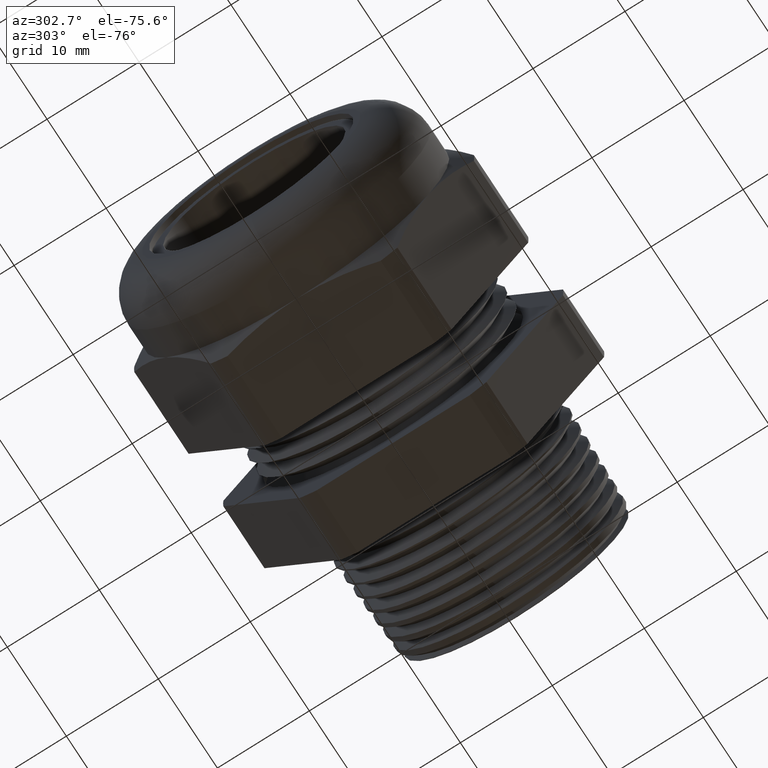
[diagram: clean part render]
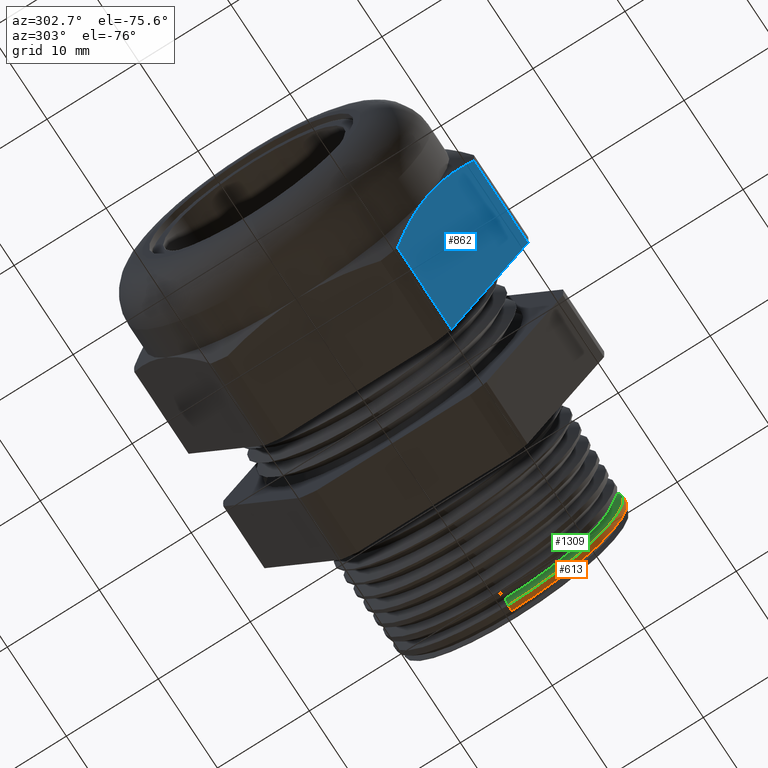
[diagram: same view with three faces highlighted in distinct colors, each labeled with its STEP entity id]
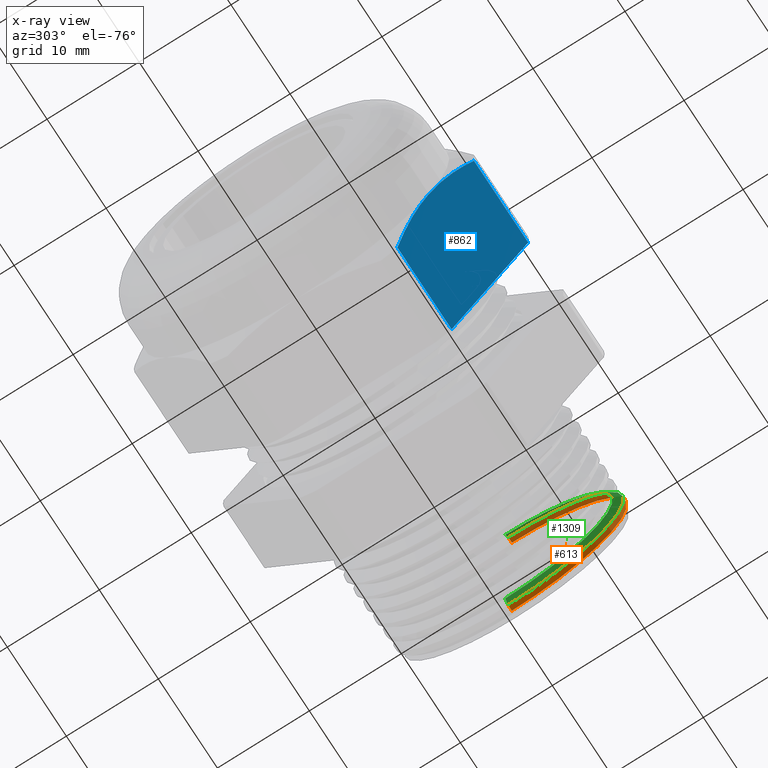
[diagram: x-ray of the same camera — body ghosted, the three highlighted faces saturated]
A machine part, auxiliary view with three faces highlighted in distinct colors.
The next image is the same camera in x-ray (body ghosted, the three faces saturated) — at least one of them is partly hidden behind the body in this view.
Their STEP definitions:

[orange] entity #613 — the highlighted conical surface has half-angle 2.5 deg.
#115 = VERTEX_POINT ( 'NONE', #1523 ) ;
#275 = VERTEX_POINT ( 'NONE', #1839 ) ;
#276 = VERTEX_POINT ( 'NONE', #1838 ) ;
#277 = VERTEX_POINT ( 'NONE', #1837 ) ;
#580 = EDGE_CURVE ( 'NONE', #115, #277, #2455, .T. ) ;
#583 = EDGE_CURVE ( 'NONE', #275, #276, #2446, .T. ) ;
#613 = ADVANCED_FACE ( 'NONE', ( #2511 ), #2510, .T. ) ;
#671 = EDGE_LOOP ( 'NONE', ( #672, #673, #675, #676 ) ) ;
#672 = ORIENTED_EDGE ( 'NONE', *, *, #580, .F. ) ;
#673 = ORIENTED_EDGE ( 'NONE', *, *, #674, .F. ) ;
#674 = EDGE_CURVE ( 'NONE', #275, #115, #2590, .T. ) ;
#675 = ORIENTED_EDGE ( 'NONE', *, *, #583, .T. ) ;
#676 = ORIENTED_EDGE ( 'NONE', *, *, #677, .F. ) ;
#677 = EDGE_CURVE ( 'NONE', #277, #276, #2647, .T. ) ;
#1523 = CARTESIAN_POINT ( 'NONE',  ( 0.5170331955234261900, 6.037101614696442200E-017, -0.4924258431684461200 ) ) ;
#1837 = CARTESIAN_POINT ( 'NONE',  ( 0.4922552525212970400, 6.043725902856145600E-017, -0.4935076715232524800 ) ) ;
#1838 = CARTESIAN_POINT ( 'NONE',  ( 0.4922552525212970400, 0.0000000000000000000, 0.4935076715232524800 ) ) ;
#1839 = CARTESIAN_POINT ( 'NONE',  ( 0.5170331955234261900, 0.0000000000000000000, 0.4924258431684461200 ) ) ;
#2443 = DIRECTION ( 'NONE',  ( -0.9990482215818576900, 0.0000000000000000000, 0.04361938736533610400 ) ) ;
#2444 = VECTOR ( 'NONE', #2443, 39.37007874015748100 ) ;
#2445 = CARTESIAN_POINT ( 'NONE',  ( 0.5500000000000001600, 0.0000000000000000000, 0.4909864814003183600 ) ) ;
#2446 = LINE ( 'NONE', #2445, #2444 ) ;
#2447 = DIRECTION ( 'NONE',  ( -0.9990482215818576900, 5.341834311772736400E-018, -0.04361938736533610400 ) ) ;
#2448 = VECTOR ( 'NONE', #2447, 39.37007874015748100 ) ;
#2449 = CARTESIAN_POINT ( 'NONE',  ( 0.5500000000000001600, 6.012850228715212800E-017, -0.4909864814003183600 ) ) ;
#2455 = LINE ( 'NONE', #2449, #2448 ) ;
#2507 = DIRECTION ( 'NONE',  ( 0.0000000000000000000, 0.0000000000000000000, 1.000000000000000000 ) ) ;
#2508 = DIRECTION ( 'NONE',  ( -1.000000000000000000, 0.0000000000000000000, 0.0000000000000000000 ) ) ;
#2509 = AXIS2_PLACEMENT_3D ( 'NONE', #2517, #2508, #2507 ) ;
#2510 = CONICAL_SURFACE ( 'NONE', #2509, 0.4909864814003183600, 0.04363323129985834100 ) ;
#2511 = FACE_OUTER_BOUND ( 'NONE', #671, .T. ) ;
#2517 = CARTESIAN_POINT ( 'NONE',  ( 0.5500000000000001600, 0.0000000000000000000, 0.0000000000000000000 ) ) ;
#2588 = DIRECTION ( 'NONE',  ( 1.000000000000000000, 0.0000000000000000000, 0.0000000000000000000 ) ) ;
#2589 = AXIS2_PLACEMENT_3D ( 'NONE', #2595, #2588, #2648 ) ;
#2590 = CIRCLE ( 'NONE', #2589, 0.4924258431684461200 ) ;
#2595 = CARTESIAN_POINT ( 'NONE',  ( 0.5170331955234261900, 0.0000000000000000000, 0.0000000000000000000 ) ) ;
#2643 = DIRECTION ( 'NONE',  ( 0.0000000000000000000, 0.0000000000000000000, -1.000000000000000000 ) ) ;
#2644 = DIRECTION ( 'NONE',  ( -1.000000000000000000, 0.0000000000000000000, 0.0000000000000000000 ) ) ;
#2645 = CARTESIAN_POINT ( 'NONE',  ( 0.4922552525212970400, 0.0000000000000000000, 0.0000000000000000000 ) ) ;
#2646 = AXIS2_PLACEMENT_3D ( 'NONE', #2645, #2644, #2643 ) ;
#2647 = CIRCLE ( 'NONE', #2646, 0.4935076715232523700 ) ;
#2648 = DIRECTION ( 'NONE',  ( 0.0000000000000000000, 0.0000000000000000000, 1.000000000000000000 ) ) ;

[blue] entity #862 — the highlighted planar face has unit normal (0, -0.866, -0.5).
#739 = VERTEX_POINT ( 'NONE', #2717 ) ;
#742 = EDGE_CURVE ( 'NONE', #739, #743, #2715, .T. ) ;
#743 = VERTEX_POINT ( 'NONE', #2711 ) ;
#804 = VERTEX_POINT ( 'NONE', #2893 ) ;
#810 = VERTEX_POINT ( 'NONE', #2882 ) ;
#812 = EDGE_CURVE ( 'NONE', #804, #810, #2881, .T. ) ;
#862 = ADVANCED_FACE ( 'NONE', ( #2992 ), #2991, .T. ) ;
#863 = EDGE_LOOP ( 'NONE', ( #864, #865, #921, #923, #924 ) ) ;
#864 = ORIENTED_EDGE ( 'NONE', *, *, #742, .F. ) ;
#865 = ORIENTED_EDGE ( 'NONE', *, *, #866, .T. ) ;
#866 = EDGE_CURVE ( 'NONE', #739, #867, #2986, .T. ) ;
#867 = VERTEX_POINT ( 'NONE', #2985 ) ;
#921 = ORIENTED_EDGE ( 'NONE', *, *, #922, .T. ) ;
#922 = EDGE_CURVE ( 'NONE', #867, #804, #3154, .T. ) ;
#923 = ORIENTED_EDGE ( 'NONE', *, *, #812, .T. ) ;
#924 = ORIENTED_EDGE ( 'NONE', *, *, #925, .T. ) ;
#925 = EDGE_CURVE ( 'NONE', #810, #743, #3153, .T. ) ;
#2711 = CARTESIAN_POINT ( 'NONE',  ( -0.5058333333333331300, -0.7268402752278255700, -0.04107571431805972400 ) ) ;
#2712 = DIRECTION ( 'NONE',  ( 1.000000000000000000, 0.0000000000000000000, 0.0000000000000000000 ) ) ;
#2713 = VECTOR ( 'NONE', #2712, 39.37007874015748100 ) ;
#2714 = CARTESIAN_POINT ( 'NONE',  ( -2.992185896283379600, -0.7268402752278255700, -0.04107571431805972400 ) ) ;
#2715 = LINE ( 'NONE', #2714, #2713 ) ;
#2717 = CARTESIAN_POINT ( 'NONE',  ( -0.8674666790032095100, -0.7268402752278255700, -0.04107571431805973800 ) ) ;
#2878 = DIRECTION ( 'NONE',  ( 1.000000000000000000, 0.0000000000000000000, 0.0000000000000000000 ) ) ;
#2879 = VECTOR ( 'NONE', #2878, 39.37007874015748100 ) ;
#2880 = CARTESIAN_POINT ( 'NONE',  ( -2.992185896283379600, -0.3989927496919445400, -0.6089242856819404600 ) ) ;
#2881 = LINE ( 'NONE', #2880, #2879 ) ;
#2882 = CARTESIAN_POINT ( 'NONE',  ( -0.5058333333333331300, -0.3989927496919445400, -0.6089242856819404600 ) ) ;
#2893 = CARTESIAN_POINT ( 'NONE',  ( -0.8674666790032094000, -0.3989927496919445400, -0.6089242856819404600 ) ) ;
#2983 = CARTESIAN_POINT ( 'NONE',  ( -0.8814868053153364100, -0.6998789008317275500, -0.08777418461398804600 ) ) ;
#2984 = CARTESIAN_POINT ( 'NONE',  ( -0.8674666790032095100, -0.7268402752278255700, -0.04107571431805973800 ) ) ;
#2985 = CARTESIAN_POINT ( 'NONE',  ( -0.9125000000000002000, -0.5629165124598848300, -0.3249999999999999600 ) ) ;
#2986 = B_SPLINE_CURVE_WITH_KNOTS ( 'NONE', 3,
 ( #2984, #2983, #3042, #3041, #3040, #3039 ),
 .UNSPECIFIED., .F., .F.,
 ( 4, 2, 4 ),
 ( 2.361308568648023400E-007, 0.004201502711991006300, 0.008402769293125146600 ),
 .UNSPECIFIED. ) ;
#2987 = DIRECTION ( 'NONE',  ( 0.0000000000000000000, 0.5000000000000001100, -0.8660254037844386000 ) ) ;
#2988 = DIRECTION ( 'NONE',  ( 0.0000000000000000000, -0.8660254037844386000, -0.5000000000000001100 ) ) ;
#2989 = CARTESIAN_POINT ( 'NONE',  ( -2.992185896283379600, -0.7268402752278255700, -0.04107571431805972400 ) ) ;
#2990 = AXIS2_PLACEMENT_3D ( 'NONE', #2989, #2988, #2987 ) ;
#2991 = PLANE ( 'NONE',  #2990 ) ;
#2992 = FACE_OUTER_BOUND ( 'NONE', #863, .T. ) ;
#3039 = CARTESIAN_POINT ( 'NONE',  ( -0.9125000000000002000, -0.5629165124598848300, -0.3249999999999999600 ) ) ;
#3040 = CARTESIAN_POINT ( 'NONE',  ( -0.9125000000000003100, -0.5906510409558671800, -0.2769623875209920600 ) ) ;
#3041 = CARTESIAN_POINT ( 'NONE',  ( -0.9083465192945222600, -0.6181565215413856700, -0.2293214976602746800 ) ) ;
#3042 = CARTESIAN_POINT ( 'NONE',  ( -0.8928224553762588200, -0.6727694882672526900, -0.1347290645390048200 ) ) ;
#3142 = VECTOR ( 'NONE', #3151, 39.37007874015748100 ) ;
#3143 = CARTESIAN_POINT ( 'NONE',  ( -0.8674666790032094000, -0.3989927496919445400, -0.6089242856819404600 ) ) ;
#3144 = CARTESIAN_POINT ( 'NONE',  ( -0.8814205714001801500, -0.4258267530969215300, -0.5624464284140443500 ) ) ;
#3145 = CARTESIAN_POINT ( 'NONE',  ( -0.8927551590989975000, -0.4528752911945964600, -0.5155969861584086500 ) ) ;
#3146 = CARTESIAN_POINT ( 'NONE',  ( -0.9044328033704849300, -0.4938841810957507700, -0.4445675052876110200 ) ) ;
#3147 = CARTESIAN_POINT ( 'NONE',  ( -0.9074375322794255800, -0.5076265280763747600, -0.4207650621019290400 ) ) ;
#3148 = CARTESIAN_POINT ( 'NONE',  ( -0.9114778356147180700, -0.5352725060425331800, -0.3728808236396135600 ) ) ;
#3149 = CARTESIAN_POINT ( 'NONE',  ( -0.9125000000000002000, -0.5491430333788607200, -0.3488563655653210700 ) ) ;
#3150 = CARTESIAN_POINT ( 'NONE',  ( -0.9125000000000002000, -0.5629165124598848300, -0.3249999999999999600 ) ) ;
#3151 = DIRECTION ( 'NONE',  ( 0.0000000000000000000, -0.5000000000000001100, 0.8660254037844386000 ) ) ;
#3152 = CARTESIAN_POINT ( 'NONE',  ( -0.5058333333333333600, -0.4237915124598850000, -0.5659715686030202300 ) ) ;
#3153 = LINE ( 'NONE', #3152, #3142 ) ;
#3154 = B_SPLINE_CURVE_WITH_KNOTS ( 'NONE', 3,
 ( #3150, #3149, #3148, #3147, #3146, #3145, #3144, #3143 ),
 .UNSPECIFIED., .F., .F.,
 ( 4, 2, 2, 4 ),
 ( 0.008402769293125146600, 0.01048919587064708900, 0.01257562244816903000, 0.01674847560321291600 ),
 .UNSPECIFIED. ) ;

[green] entity #1309 — the highlighted conical surface has half-angle 60 deg.
#264 = VERTEX_POINT ( 'NONE', #1797 ) ;
#265 = VERTEX_POINT ( 'NONE', #1796 ) ;
#276 = VERTEX_POINT ( 'NONE', #1838 ) ;
#277 = VERTEX_POINT ( 'NONE', #1837 ) ;
#283 = EDGE_CURVE ( 'NONE', #264, #276, #1828, .T. ) ;
#284 = EDGE_CURVE ( 'NONE', #265, #277, #1882, .T. ) ;
#677 = EDGE_CURVE ( 'NONE', #277, #276, #2647, .T. ) ;
#1287 = ORIENTED_EDGE ( 'NONE', *, *, #283, .F. ) ;
#1288 = ORIENTED_EDGE ( 'NONE', *, *, #1306, .F. ) ;
#1289 = ORIENTED_EDGE ( 'NONE', *, *, #284, .T. ) ;
#1290 = ORIENTED_EDGE ( 'NONE', *, *, #677, .T. ) ;
#1306 = EDGE_CURVE ( 'NONE', #265, #264, #3676, .T. ) ;
#1309 = ADVANCED_FACE ( 'NONE', ( #3668 ), #3667, .T. ) ;
#1310 = EDGE_LOOP ( 'NONE', ( #1287, #1288, #1289, #1290 ) ) ;
#1796 = CARTESIAN_POINT ( 'NONE',  ( 0.4728319270764286300, 5.848380990058235700E-017, -0.4598654850007972700 ) ) ;
#1797 = CARTESIAN_POINT ( 'NONE',  ( 0.4728319270764286300, 0.0000000000000000000, 0.4598654850007972700 ) ) ;
#1828 = LINE ( 'NONE', #1885, #1884 ) ;
#1837 = CARTESIAN_POINT ( 'NONE',  ( 0.4922552525212970400, 6.043725902856145600E-017, -0.4935076715232524800 ) ) ;
#1838 = CARTESIAN_POINT ( 'NONE',  ( 0.4922552525212970400, 0.0000000000000000000, 0.4935076715232524800 ) ) ;
#1879 = DIRECTION ( 'NONE',  ( 0.5000000000000017800, 0.0000000000000000000, -0.8660254037844374900 ) ) ;
#1880 = VECTOR ( 'NONE', #1879, 39.37007874015748100 ) ;
#1881 = CARTESIAN_POINT ( 'NONE',  ( 0.4728319270764286300, 0.0000000000000000000, -0.4598654850007972700 ) ) ;
#1882 = LINE ( 'NONE', #1881, #1880 ) ;
#1883 = DIRECTION ( 'NONE',  ( 0.5000000000000017800, 1.060575238724905400E-016, 0.8660254037844374900 ) ) ;
#1884 = VECTOR ( 'NONE', #1883, 39.37007874015748100 ) ;
#1885 = CARTESIAN_POINT ( 'NONE',  ( 0.4728319270764286300, 5.631727942445715900E-017, 0.4598654850007972700 ) ) ;
#2643 = DIRECTION ( 'NONE',  ( 0.0000000000000000000, 0.0000000000000000000, -1.000000000000000000 ) ) ;
#2644 = DIRECTION ( 'NONE',  ( -1.000000000000000000, 0.0000000000000000000, 0.0000000000000000000 ) ) ;
#2645 = CARTESIAN_POINT ( 'NONE',  ( 0.4922552525212970400, 0.0000000000000000000, 0.0000000000000000000 ) ) ;
#2646 = AXIS2_PLACEMENT_3D ( 'NONE', #2645, #2644, #2643 ) ;
#2647 = CIRCLE ( 'NONE', #2646, 0.4935076715232523700 ) ;
#3662 = DIRECTION ( 'NONE',  ( 0.0000000000000000000, 0.0000000000000000000, -1.000000000000000000 ) ) ;
#3663 = DIRECTION ( 'NONE',  ( 1.000000000000000000, 0.0000000000000000000, 0.0000000000000000000 ) ) ;
#3664 = CARTESIAN_POINT ( 'NONE',  ( 0.4728319270764286300, 0.0000000000000000000, 0.0000000000000000000 ) ) ;
#3665 = AXIS2_PLACEMENT_3D ( 'NONE', #3664, #3663, #3662 ) ;
#3667 = CONICAL_SURFACE ( 'NONE', #3665, 0.4598654850007972700, 1.047197551196595600 ) ;
#3668 = FACE_OUTER_BOUND ( 'NONE', #1310, .T. ) ;
#3669 = DIRECTION ( 'NONE',  ( 0.0000000000000000000, 0.0000000000000000000, 1.000000000000000000 ) ) ;
#3670 = DIRECTION ( 'NONE',  ( -1.000000000000000000, 0.0000000000000000000, 0.0000000000000000000 ) ) ;
#3671 = CARTESIAN_POINT ( 'NONE',  ( 0.4728319270764286300, 0.0000000000000000000, 0.0000000000000000000 ) ) ;
#3672 = AXIS2_PLACEMENT_3D ( 'NONE', #3671, #3670, #3669 ) ;
#3676 = CIRCLE ( 'NONE', #3672, 0.4598654850007972700 ) ;